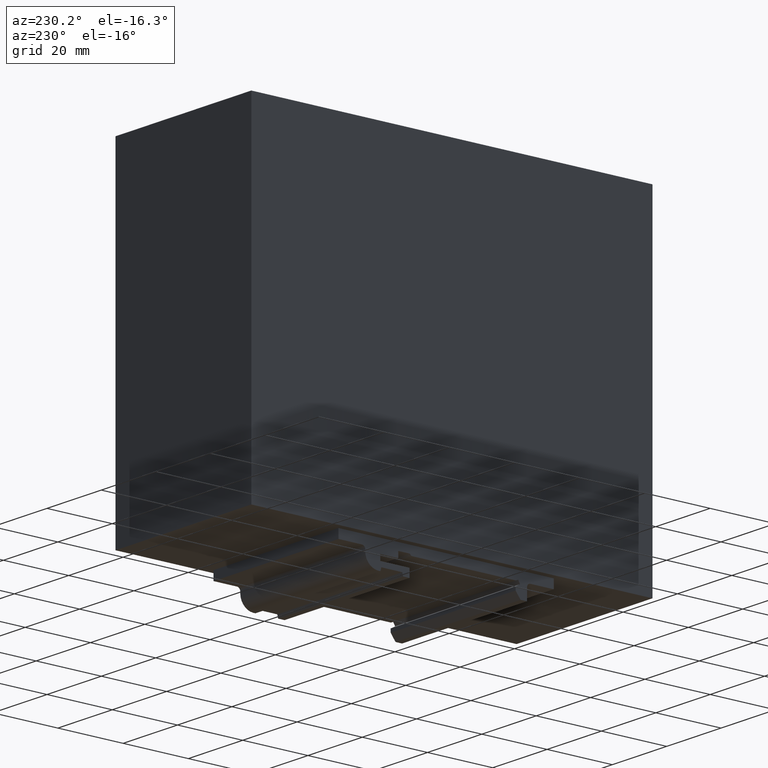
[diagram: clean part render]
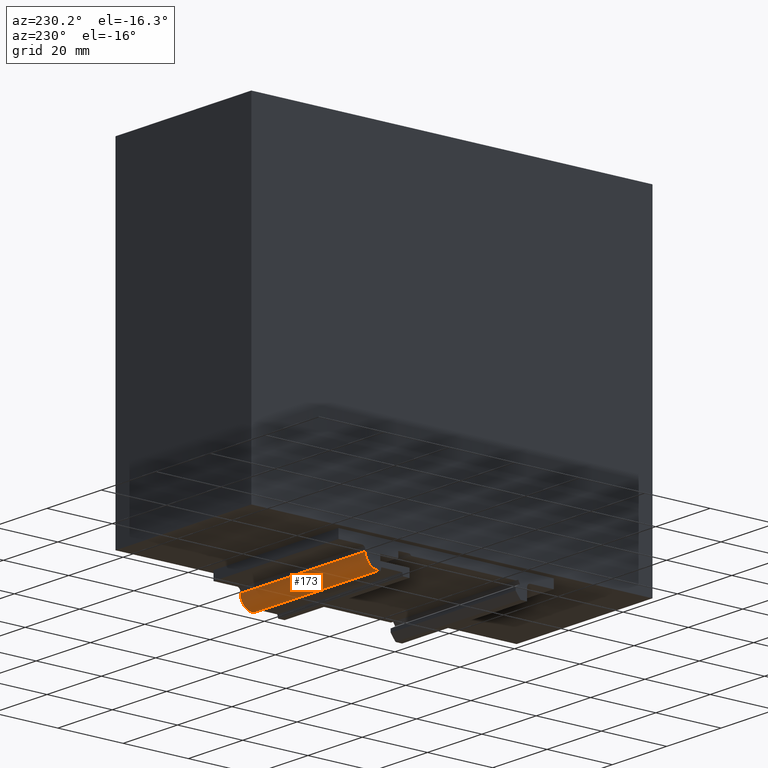
[diagram: same view with one face highlighted and labeled with its STEP entity id]
A machine part, auxiliary view. The second image highlights one B-rep face of the part: STEP entity #173.
In plain terms, the highlighted cylindrical surface (edge-blend (fillet) strip) has radius 4 mm, axis along (-1, -0, 0).
Its self-contained STEP definition (entity closure, byte-faithful):
#38 = VECTOR ( 'NONE', #1078, 1000.000000000000000 ) ;
#80 = CARTESIAN_POINT ( 'NONE',  ( 22.99999999999999300, 20.90000000000001300, -58.99500000000000500 ) ) ;
#103 = CIRCLE ( 'NONE', #479, 4.000000000000003600 ) ;
#105 = FACE_OUTER_BOUND ( 'NONE', #1116, .T. ) ;
#120 = CARTESIAN_POINT ( 'NONE',  ( 22.99999999999999300, 20.90000000000001300, -54.99500000000000500 ) ) ;
#153 = ORIENTED_EDGE ( 'NONE', *, *, #634, .F. ) ;
#160 = CARTESIAN_POINT ( 'NONE',  ( -23.00000000000000700, 20.90000000000000900, -58.99500000000000500 ) ) ;
#173 = ADVANCED_FACE ( 'NONE', ( #105 ), #539, .T. ) ;
#261 = ORIENTED_EDGE ( 'NONE', *, *, #839, .F. ) ;
#306 = CARTESIAN_POINT ( 'NONE',  ( -23.00000000000000700, 24.90000000000000900, -54.99500000000000500 ) ) ;
#346 = VERTEX_POINT ( 'NONE', #160 ) ;
#387 = DIRECTION ( 'NONE',  ( 1.000000000000000000, -0.0000000000000000000, -0.0000000000000000000 ) ) ;
#389 = CARTESIAN_POINT ( 'NONE',  ( -23.00000000000000700, 20.90000000000000900, -54.99500000000000500 ) ) ;
#390 = DIRECTION ( 'NONE',  ( -1.000000000000000000, 0.0000000000000000000, -0.0000000000000000000 ) ) ;
#450 = DIRECTION ( 'NONE',  ( -1.000000000000000000, -7.542275982507857100E-017, 0.0000000000000000000 ) ) ;
#479 = AXIS2_PLACEMENT_3D ( 'NONE', #120, #387, #1026 ) ;
#539 = CYLINDRICAL_SURFACE ( 'NONE', #972, 4.000000000000000000 ) ;
#554 = LINE ( 'NONE', #744, #1063 ) ;
#577 = VERTEX_POINT ( 'NONE', #306 ) ;
#583 = LINE ( 'NONE', #80, #38 ) ;
#616 = EDGE_CURVE ( 'NONE', #577, #346, #1110, .T. ) ;
#634 = EDGE_CURVE ( 'NONE', #981, #924, #103, .T. ) ;
#665 = CARTESIAN_POINT ( 'NONE',  ( 22.99999999999999300, 20.90000000000001300, -58.99500000000000500 ) ) ;
#682 = ORIENTED_EDGE ( 'NONE', *, *, #900, .F. ) ;
#708 = DIRECTION ( 'NONE',  ( 7.542275982507857100E-017, -1.000000000000000000, 0.0000000000000000000 ) ) ;
#744 = CARTESIAN_POINT ( 'NONE',  ( -23.00000000000000700, 24.90000000000000900, -54.99500000000000500 ) ) ;
#804 = DIRECTION ( 'NONE',  ( -1.000000000000000000, -7.542275982507857100E-017, 0.0000000000000000000 ) ) ;
#837 = ORIENTED_EDGE ( 'NONE', *, *, #616, .F. ) ;
#839 = EDGE_CURVE ( 'NONE', #924, #577, #554, .T. ) ;
#900 = EDGE_CURVE ( 'NONE', #346, #981, #583, .T. ) ;
#924 = VERTEX_POINT ( 'NONE', #1003 ) ;
#972 = AXIS2_PLACEMENT_3D ( 'NONE', #973, #804, #708 ) ;
#973 = CARTESIAN_POINT ( 'NONE',  ( -1.576335680344143000E-015, 20.90000000000001300, -54.99500000000000500 ) ) ;
#981 = VERTEX_POINT ( 'NONE', #665 ) ;
#992 = AXIS2_PLACEMENT_3D ( 'NONE', #389, #390, #1035 ) ;
#1003 = CARTESIAN_POINT ( 'NONE',  ( 22.99999999999999300, 24.90000000000001300, -54.99500000000000500 ) ) ;
#1026 = DIRECTION ( 'NONE',  ( 0.0000000000000000000, 0.0000000000000000000, 1.000000000000000000 ) ) ;
#1035 = DIRECTION ( 'NONE',  ( 0.0000000000000000000, 0.0000000000000000000, -1.000000000000000000 ) ) ;
#1063 = VECTOR ( 'NONE', #450, 1000.000000000000000 ) ;
#1078 = DIRECTION ( 'NONE',  ( 1.000000000000000000, 7.542275982507857100E-017, 0.0000000000000000000 ) ) ;
#1110 = CIRCLE ( 'NONE', #992, 4.000000000000003600 ) ;
#1116 = EDGE_LOOP ( 'NONE', ( #837, #261, #153, #682 ) ) ;